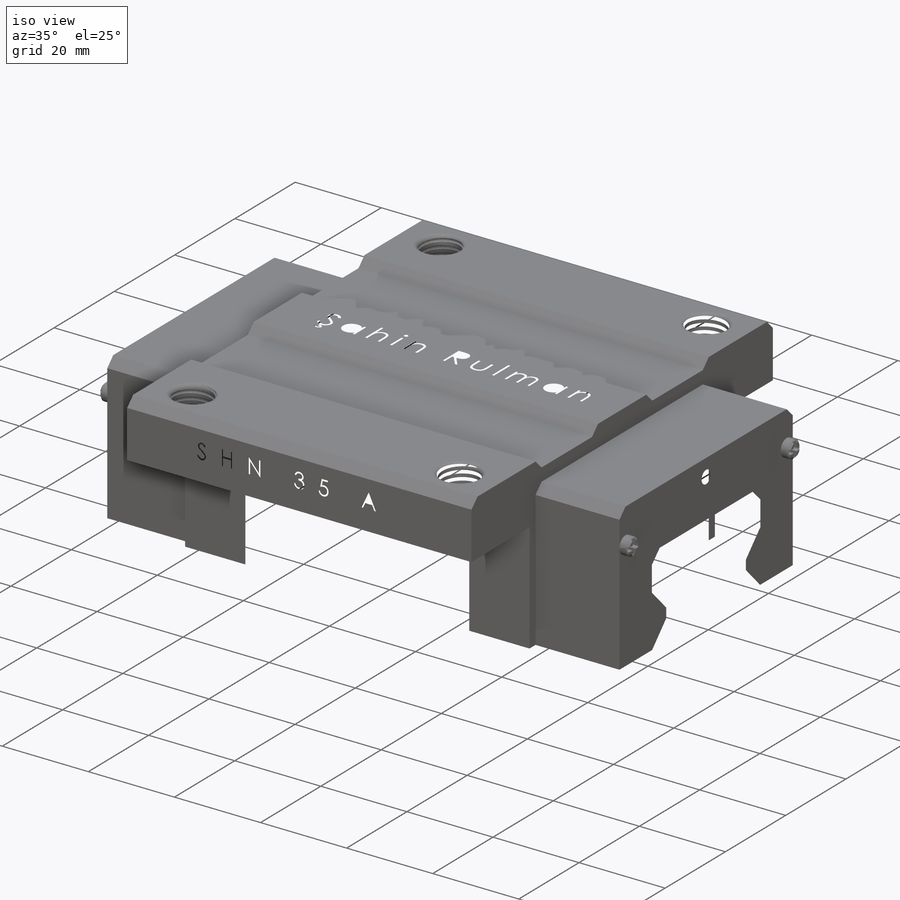
[diagram: iso view]
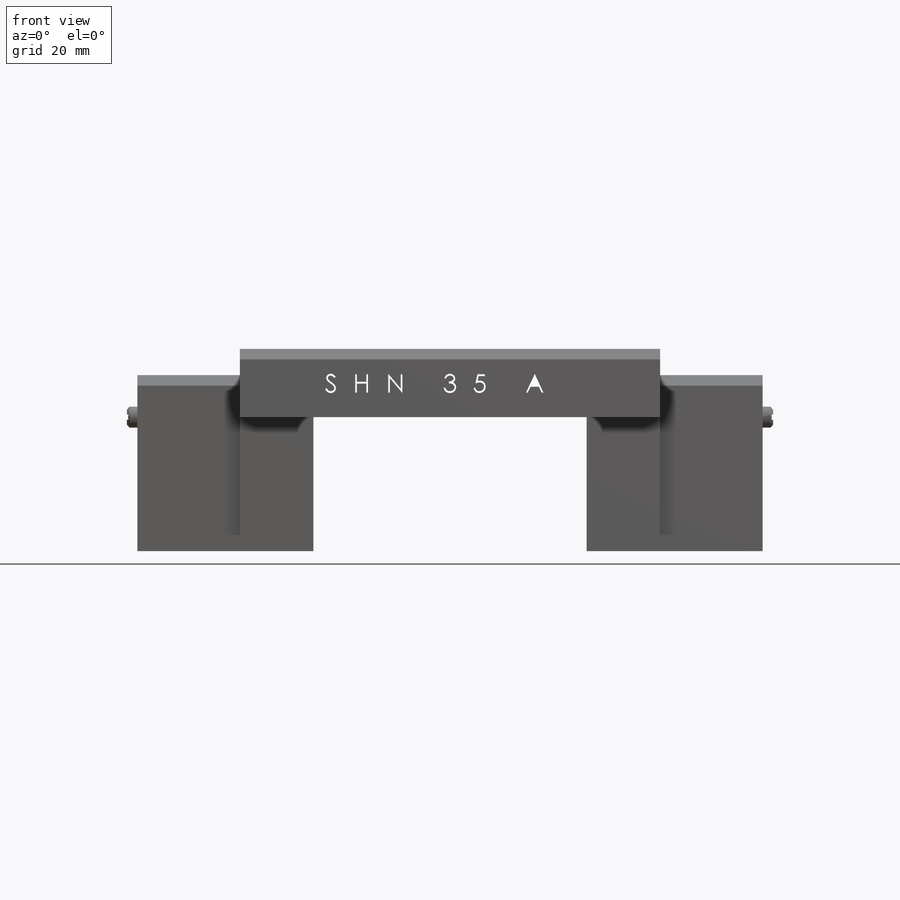
[diagram: front view]
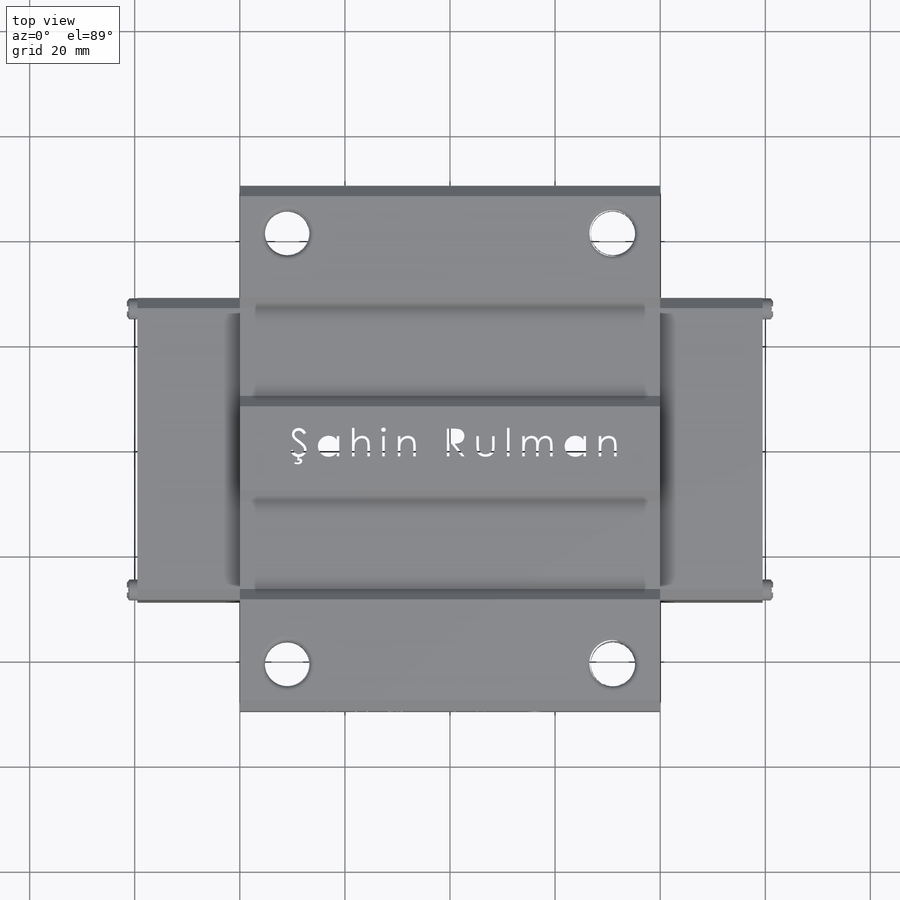
[diagram: top view]
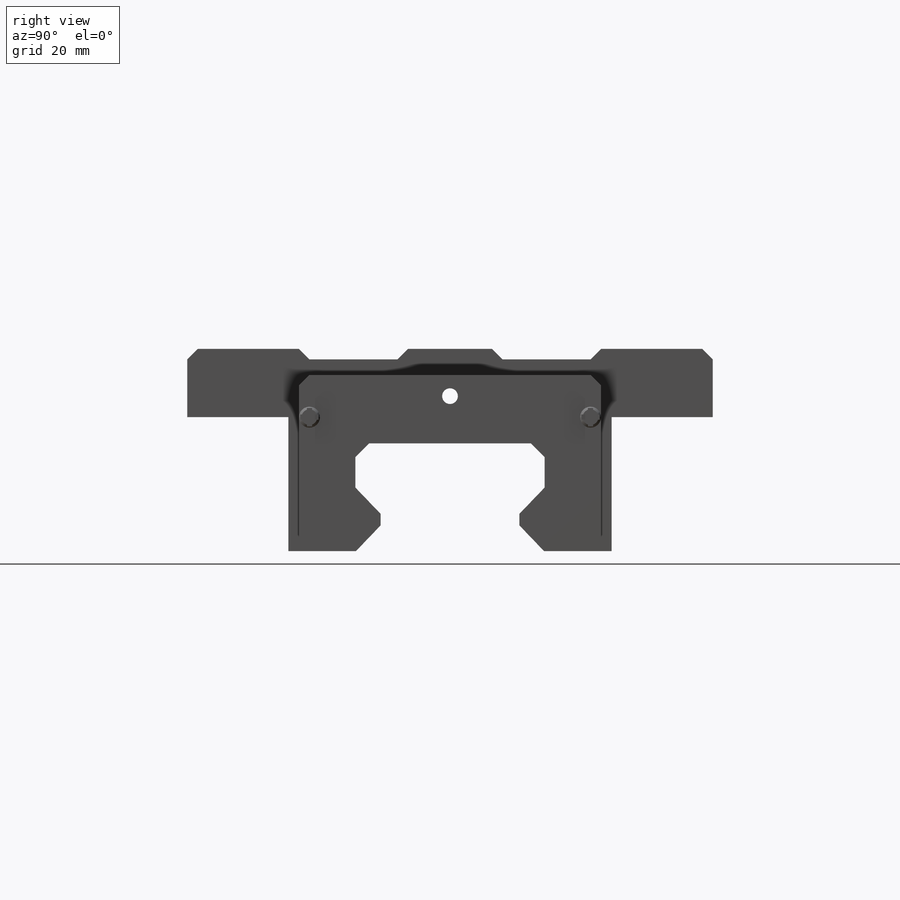
[diagram: right view]
SOLIDWORKS PART (.sldprt)
format: sldprt  version: not decoded by parser v0  size: 3,520,000 bytes
history: native  units: mm
features: sketch x11, mirror x6, cut_extrude x5, extrude x4, chamfer x4, material x1, fillet x1, helix x1, plane x1, sweep x1 (+11 scaffold rows collapsed)
feature tree (46):
  scaffold x11  (default folders/planes/origin — collapsed)
  material  "Material <not specified>"
  sketch  "Sketch1"  dims[c1.D1=100.0mm c1.D2=50.0mm c1.D3=48.0mm c1.D4=13.0mm c1.D9=6.0mm c1.D10=38.5mm c1.D13=2.0mm c1.D14=2.0mm c1.D15=2.0mm c1.D16=2.0mm c1.D5=19.25mm c1.D11=19.25mm c1.D12=50.0mm c2.D11=100.0mm c2.D12=61.5mm c2.D17=33.0mm c2.D5=41.0mm c2.D6=41.0mm c2.D7=4.25mm c2.D8=4.25mm c3.D11=8.0mm c3.D12=17.0mm c3.D16=17.0mm]
  extrude  "Boss-Extrude1"  Depth=80mm
  sketch  "Sketch2"  dims[D1=5.0mm D2=2.0mm D3=2.0mm D4=57.5mm]
  extrude  "Boss-Extrude2"  Depth=19.5mm
  sketch  "Sketch3"  dims[D2=4.0mm D1=8.0mm D7=3.5mm D8=1.75mm D9=3.5mm D10=1.75mm D3=0.5mm D4=0.5mm D5=0.5mm D6=0.5mm]
  extrude  "Boss-Extrude3"  Depth=2mm
  chamfer  "Chamfer1"  Distance=0.5mm Angle=45deg
  mirror  "Mirror1"
  mirror  "Mirror2"
  chamfer  "Chamfer3"  Distance=2mm Angle=45deg
  sketch  "Sketch8"  dims[D5=8.5mm D1=31.0mm D2=31.0mm D3=41.0mm D4=41.0mm]
  cut_extrude  "Cut-Extrude1"  [1 undecoded]
  fillet  "Fillet1"  Radius=1mm
  sketch  "Sketch9"
  helix  "Helix/Spiral1"  Pitch=24.375mm
  plane  "Plane1"
  sketch  "Sketch10"  dims[D1=0.75mm]
  sweep  "Cut-Sweep1"
  mirror  "Mirror3"
  mirror  "Mirror4"
  sketch  "Sketch11"  dims[D1=75.0mm]
  extrude  "Boss-Extrude6"  Depth=52mm
  mirror  "Mirror5"
  sketch  "Sketch12"
  cut_extrude  "Cut-Extrude2"  Depth=2mm
  sketch  "Sketch13"
  cut_extrude  "Cut-Extrude3"  Depth=2mm
  sketch  "Sketch14"  dims[c1.D3=48.0mm c1.D4=9.5mm c1.D5=29.0mm c1.D6=2.0mm c1.D7=2.0mm c1.D8=5.0mm c1.D9=5.0mm c1.D10=3.0mm c1.D11=5.0mm c1.D12=17.0mm c1.D13=34.0mm c1.D14=17.0mm c1.D2=17.0mm c2.D12=17.0mm c2.D14=34.0mm c2.D5=34.0mm c2.D13=30.0mm c2.D1=17.0mm c2.D2=17.0mm]
  cut_extrude  "Cut-Extrude4"  [1 undecoded]
  chamfer  "Chamfer4"  Distance=1mm Angle=45deg
  chamfer  "Chamfer5"  Distance=1mm Angle=45deg
  sketch  "Sketch15"  dims[D1=3.0mm D2=4.0mm]
  cut_extrude  "Cut-Extrude5"  [1 undecoded]
  mirror  "Mirror6"
decode coverage: 20 of 33 modeling features carry decoded parameters
note: 3 parameter values undecoded
summary: no parameter record found for 3 features
note: suppression state not decoded; provenance and decode notes live in map.json
